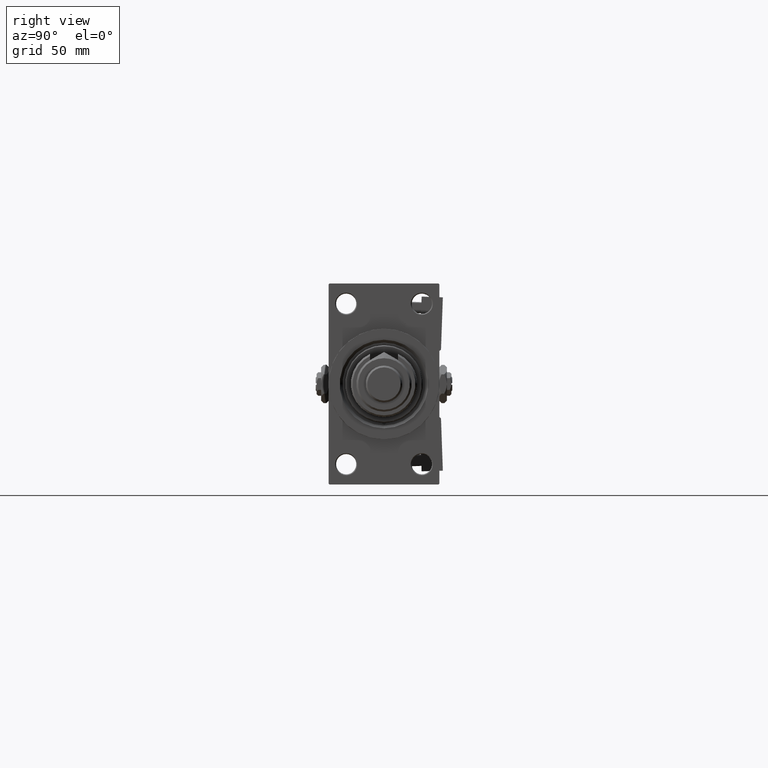
[diagram: clean part render]
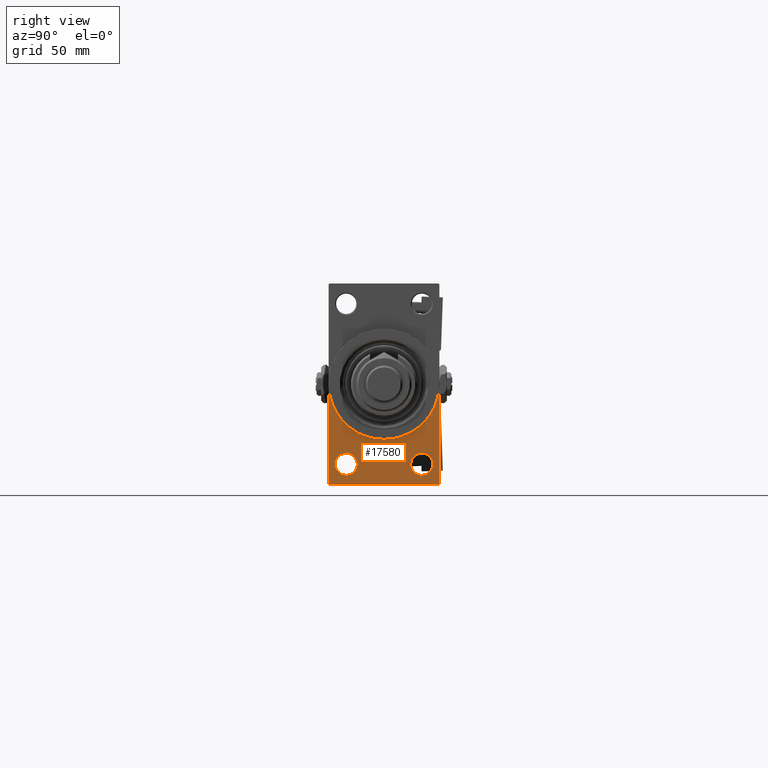
[diagram: same view with one face highlighted and labeled with its STEP entity id]
A machine part, right view. The second image highlights one B-rep face of the part: STEP entity #17580.
In plain terms, the highlighted planar face has unit normal (-1, 0, 0).
Its self-contained STEP definition (entity closure, byte-faithful):
#175 = FACE_BOUND ( 'NONE', #47079, .T. ) ;
#1225 = DIRECTION ( 'NONE',  ( 0.000000000000000000, -1.000000000000000000, -1.156482317317871478E-16 ) ) ;
#1985 = VERTEX_POINT ( 'NONE', #9556 ) ;
#2953 = ORIENTED_EDGE ( 'NONE', *, *, #14810, .T. ) ;
#3327 = VERTEX_POINT ( 'NONE', #17351 ) ;
#4000 = CARTESIAN_POINT ( 'NONE',  ( 243.0000000000000000, 0.000000000000000000, 0.000000000000000000 ) ) ;
#4049 = VECTOR ( 'NONE', #41032, 1000.000000000000000 ) ;
#4081 = DIRECTION ( 'NONE',  ( -1.000000000000000000, 0.000000000000000000, -0.000000000000000000 ) ) ;
#4468 = AXIS2_PLACEMENT_3D ( 'NONE', #4000, #16867, #20703 ) ;
#5337 = VERTEX_POINT ( 'NONE', #20489 ) ;
#5555 = DIRECTION ( 'NONE',  ( -1.000000000000000000, 0.000000000000000000, -0.000000000000000000 ) ) ;
#6205 = VERTEX_POINT ( 'NONE', #24590 ) ;
#7248 = EDGE_CURVE ( 'NONE', #9843, #9763, #14983, .T. ) ;
#7793 = VERTEX_POINT ( 'NONE', #30686 ) ;
#8709 = DIRECTION ( 'NONE',  ( 0.000000000000000000, 0.000000000000000000, 1.000000000000000000 ) ) ;
#8737 = LINE ( 'NONE', #25413, #42355 ) ;
#9072 = AXIS2_PLACEMENT_3D ( 'NONE', #33726, #5555, #34526 ) ;
#9454 = DIRECTION ( 'NONE',  ( 1.000000000000000000, 0.000000000000000000, 0.000000000000000000 ) ) ;
#9468 = CARTESIAN_POINT ( 'NONE',  ( 243.0000000000000000, 29.99999999999999645, -53.99999999999999289 ) ) ;
#9556 = CARTESIAN_POINT ( 'NONE',  ( 243.0000000000000000, 3.673940397442059178E-15, -30.00000000000000000 ) ) ;
#9763 = VERTEX_POINT ( 'NONE', #25786 ) ;
#9843 = VERTEX_POINT ( 'NONE', #50917 ) ;
#10568 = AXIS2_PLACEMENT_3D ( 'NONE', #20776, #4081, #8709 ) ;
#10781 = VECTOR ( 'NONE', #53237, 1000.000000000000000 ) ;
#11797 = EDGE_CURVE ( 'NONE', #47428, #9843, #32570, .T. ) ;
#12588 = EDGE_CURVE ( 'NONE', #7793, #46881, #35825, .T. ) ;
#12710 = EDGE_CURVE ( 'NONE', #6205, #9763, #18192, .T. ) ;
#13015 = EDGE_CURVE ( 'NONE', #1985, #3327, #26246, .T. ) ;
#13317 = ORIENTED_EDGE ( 'NONE', *, *, #23650, .T. ) ;
#14810 = EDGE_CURVE ( 'NONE', #5337, #38022, #15829, .T. ) ;
#14983 = LINE ( 'NONE', #19102, #10781 ) ;
#15829 = CIRCLE ( 'NONE', #10568, 5.999999999999977796 ) ;
#15837 = ORIENTED_EDGE ( 'NONE', *, *, #13015, .F. ) ;
#16102 = CIRCLE ( 'NONE', #9072, 5.999999999999977796 ) ;
#16867 = DIRECTION ( 'NONE',  ( -1.000000000000000000, 0.000000000000000000, -0.000000000000000000 ) ) ;
#17203 = AXIS2_PLACEMENT_3D ( 'NONE', #39623, #18316, #39070 ) ;
#17264 = ORIENTED_EDGE ( 'NONE', *, *, #12588, .T. ) ;
#17351 = CARTESIAN_POINT ( 'NONE',  ( 243.0000000000000000, 30.00000000000000000, 0.000000000000000000 ) ) ;
#17402 = ORIENTED_EDGE ( 'NONE', *, *, #7248, .T. ) ;
#17580 = ADVANCED_FACE ( 'NONE', ( #38149, #175, #20960 ), #41466, .F. ) ;
#18192 = LINE ( 'NONE', #34573, #22726 ) ;
#18316 = DIRECTION ( 'NONE',  ( -1.000000000000000000, 0.000000000000000000, -0.000000000000000000 ) ) ;
#18345 = ORIENTED_EDGE ( 'NONE', *, *, #38747, .T. ) ;
#19054 = CIRCLE ( 'NONE', #23420, 30.00000000000000000 ) ;
#19102 = CARTESIAN_POINT ( 'NONE',  ( 243.0000000000000000, -29.50000000000002842, -54.50000000000000000 ) ) ;
#19692 = ORIENTED_EDGE ( 'NONE', *, *, #34218, .F. ) ;
#20489 = CARTESIAN_POINT ( 'NONE',  ( 243.0000000000000000, 20.50000000000000000, -37.50000000000002132 ) ) ;
#20703 = DIRECTION ( 'NONE',  ( -0.000000000000000000, 0.000000000000000000, 1.000000000000000000 ) ) ;
#20776 = CARTESIAN_POINT ( 'NONE',  ( 243.0000000000000000, 20.50000000000000000, -43.50000000000000000 ) ) ;
#20960 = FACE_OUTER_BOUND ( 'NONE', #27138, .T. ) ;
#21610 = VERTEX_POINT ( 'NONE', #9468 ) ;
#22726 = VECTOR ( 'NONE', #1225, 1000.000000000000000 ) ;
#23420 = AXIS2_PLACEMENT_3D ( 'NONE', #50024, #9454, #47735 ) ;
#23650 = EDGE_CURVE ( 'NONE', #38022, #5337, #16102, .T. ) ;
#23659 = CARTESIAN_POINT ( 'NONE',  ( 243.0000000000000000, 29.99999999999999645, -53.99999999999999289 ) ) ;
#24590 = CARTESIAN_POINT ( 'NONE',  ( 243.0000000000000000, 29.49999999999996803, -54.49999999999999289 ) ) ;
#25299 = CARTESIAN_POINT ( 'NONE',  ( 243.0000000000000000, -20.50000000000000000, -43.50000000000000000 ) ) ;
#25413 = CARTESIAN_POINT ( 'NONE',  ( 243.0000000000000000, 29.99999999999999645, 54.49999999999999289 ) ) ;
#25786 = CARTESIAN_POINT ( 'NONE',  ( 243.0000000000000000, -29.50000000000002842, -54.50000000000000000 ) ) ;
#26239 = EDGE_LOOP ( 'NONE', ( #18345, #17264 ) ) ;
#26246 = CIRCLE ( 'NONE', #51537, 30.00000000000000000 ) ;
#26460 = EDGE_CURVE ( 'NONE', #6205, #21610, #35953, .T. ) ;
#27138 = EDGE_LOOP ( 'NONE', ( #37955, #17402, #34100, #37912, #48661, #15837, #19692 ) ) ;
#28681 = CARTESIAN_POINT ( 'NONE',  ( 243.0000000000000000, -30.00000000000000000, 0.000000000000000000 ) ) ;
#29177 = EDGE_CURVE ( 'NONE', #3327, #21610, #8737, .T. ) ;
#30284 = CIRCLE ( 'NONE', #17203, 5.999999999999977796 ) ;
#30686 = CARTESIAN_POINT ( 'NONE',  ( 243.0000000000000000, -20.50000000000000000, -37.50000000000002132 ) ) ;
#32570 = LINE ( 'NONE', #53881, #4049 ) ;
#33726 = CARTESIAN_POINT ( 'NONE',  ( 243.0000000000000000, 20.50000000000000000, -43.50000000000000000 ) ) ;
#34100 = ORIENTED_EDGE ( 'NONE', *, *, #12710, .F. ) ;
#34218 = EDGE_CURVE ( 'NONE', #47428, #1985, #19054, .T. ) ;
#34526 = DIRECTION ( 'NONE',  ( 0.000000000000000000, 0.000000000000000000, 1.000000000000000000 ) ) ;
#34573 = CARTESIAN_POINT ( 'NONE',  ( 243.0000000000000000, 29.99999999999999645, -54.49999999999999289 ) ) ;
#35659 = DIRECTION ( 'NONE',  ( 1.000000000000000000, 0.000000000000000000, 0.000000000000000000 ) ) ;
#35825 = CIRCLE ( 'NONE', #50626, 5.999999999999977796 ) ;
#35953 = LINE ( 'NONE', #23659, #39802 ) ;
#37912 = ORIENTED_EDGE ( 'NONE', *, *, #26460, .T. ) ;
#37955 = ORIENTED_EDGE ( 'NONE', *, *, #11797, .T. ) ;
#38022 = VERTEX_POINT ( 'NONE', #43454 ) ;
#38149 = FACE_BOUND ( 'NONE', #26239, .T. ) ;
#38747 = EDGE_CURVE ( 'NONE', #46881, #7793, #30284, .T. ) ;
#39070 = DIRECTION ( 'NONE',  ( 0.000000000000000000, 0.000000000000000000, 1.000000000000000000 ) ) ;
#39623 = CARTESIAN_POINT ( 'NONE',  ( 243.0000000000000000, -20.50000000000000000, -43.50000000000000000 ) ) ;
#39764 = CARTESIAN_POINT ( 'NONE',  ( 243.0000000000000000, 0.000000000000000000, 0.000000000000000000 ) ) ;
#39802 = VECTOR ( 'NONE', #52901, 1000.000000000000000 ) ;
#41032 = DIRECTION ( 'NONE',  ( 0.000000000000000000, 0.000000000000000000, -1.000000000000000000 ) ) ;
#41453 = DIRECTION ( 'NONE',  ( -1.000000000000000000, 0.000000000000000000, -0.000000000000000000 ) ) ;
#41466 = PLANE ( 'NONE',  #4468 ) ;
#42355 = VECTOR ( 'NONE', #45932, 1000.000000000000000 ) ;
#43454 = CARTESIAN_POINT ( 'NONE',  ( 243.0000000000000000, 20.50000000000000000, -49.49999999999997158 ) ) ;
#45932 = DIRECTION ( 'NONE',  ( 0.000000000000000000, 0.000000000000000000, -1.000000000000000000 ) ) ;
#46881 = VERTEX_POINT ( 'NONE', #49323 ) ;
#47079 = EDGE_LOOP ( 'NONE', ( #13317, #2953 ) ) ;
#47428 = VERTEX_POINT ( 'NONE', #28681 ) ;
#47735 = DIRECTION ( 'NONE',  ( 0.000000000000000000, 0.000000000000000000, -1.000000000000000000 ) ) ;
#48661 = ORIENTED_EDGE ( 'NONE', *, *, #29177, .F. ) ;
#49323 = CARTESIAN_POINT ( 'NONE',  ( 243.0000000000000000, -20.50000000000000000, -49.49999999999997158 ) ) ;
#50024 = CARTESIAN_POINT ( 'NONE',  ( 243.0000000000000000, 0.000000000000000000, 0.000000000000000000 ) ) ;
#50626 = AXIS2_PLACEMENT_3D ( 'NONE', #25299, #41453, #50689 ) ;
#50689 = DIRECTION ( 'NONE',  ( 0.000000000000000000, 0.000000000000000000, 1.000000000000000000 ) ) ;
#50917 = CARTESIAN_POINT ( 'NONE',  ( 243.0000000000000000, -30.00000000000000000, -54.00000000000001421 ) ) ;
#51537 = AXIS2_PLACEMENT_3D ( 'NONE', #39764, #35659, #52324 ) ;
#52324 = DIRECTION ( 'NONE',  ( 0.000000000000000000, 0.000000000000000000, -1.000000000000000000 ) ) ;
#52901 = DIRECTION ( 'NONE',  ( -0.000000000000000000, 0.7071067811865672237, 0.7071067811865279218 ) ) ;
#53237 = DIRECTION ( 'NONE',  ( 0.000000000000000000, 0.7071067811865352493, -0.7071067811865597852 ) ) ;
#53881 = CARTESIAN_POINT ( 'NONE',  ( 243.0000000000000000, -30.00000000000000000, 54.50000000000000000 ) ) ;